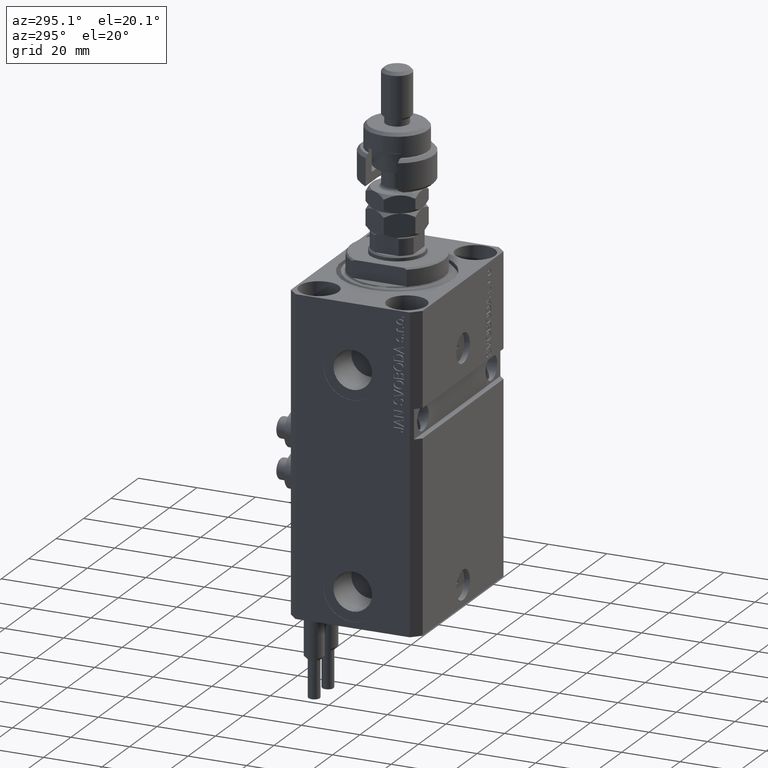
[diagram: clean part render]
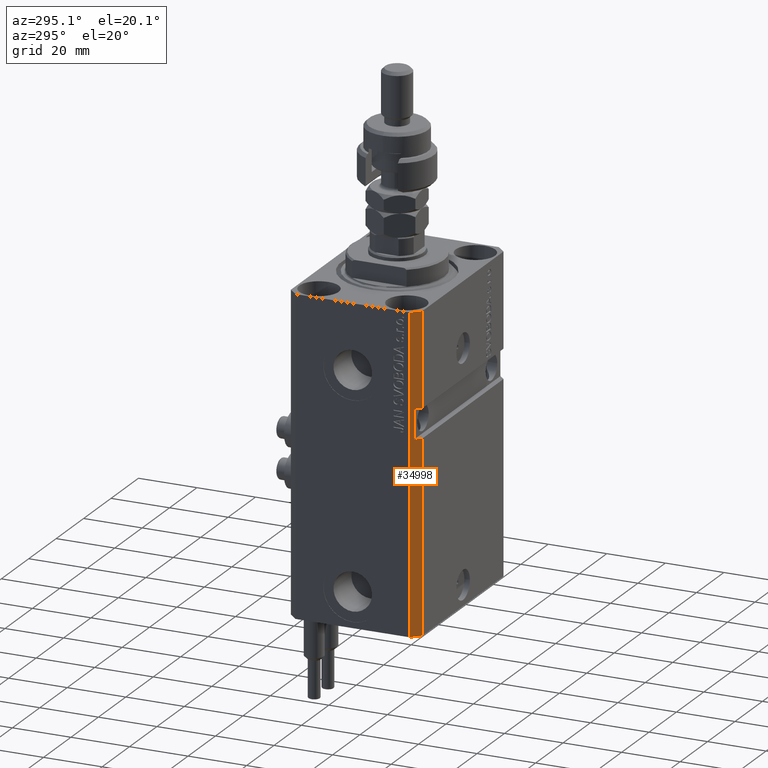
[diagram: same view with one face highlighted and labeled with its STEP entity id]
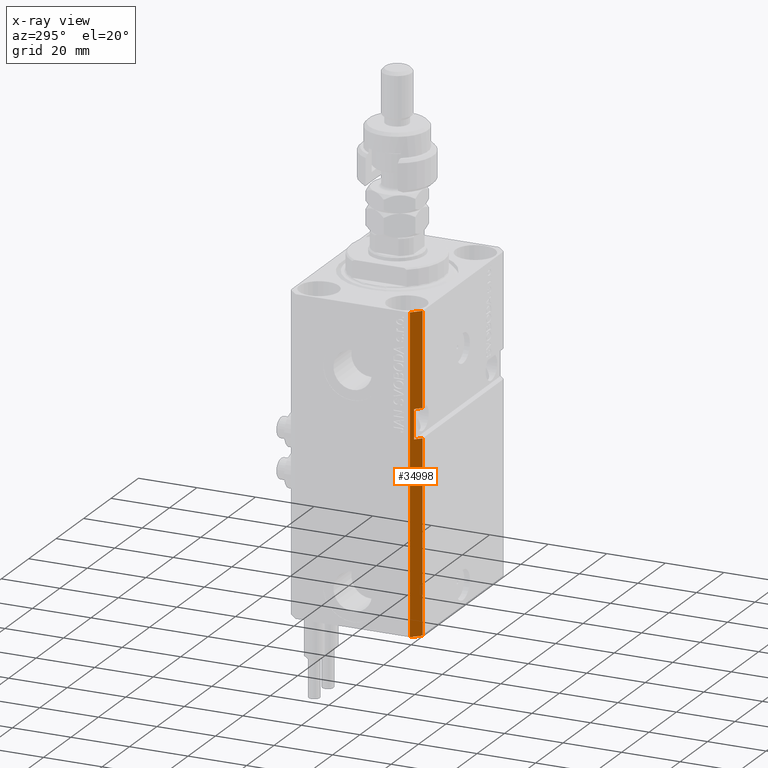
[diagram: x-ray of the same camera — body ghosted, the highlighted face saturated]
A machine part, auxiliary view. The second image highlights one B-rep face of the part: STEP entity #34998.
The next image is the same camera in x-ray: the body ghosted, the highlighted face saturated — about 0% of this face is hidden behind the body in this view.
In plain terms, the highlighted planar face has unit normal (-0.7071, -0.7071, 0).
Its self-contained STEP definition (entity closure, byte-faithful):
#646 = ORIENTED_EDGE ( 'NONE', *, *, #28214, .F. ) ;
#942 = VERTEX_POINT ( 'NONE', #43138 ) ;
#1677 = VERTEX_POINT ( 'NONE', #50659 ) ;
#1753 = ORIENTED_EDGE ( 'NONE', *, *, #12123, .T. ) ;
#1775 = FACE_OUTER_BOUND ( 'NONE', #27410, .T. ) ;
#4134 = ORIENTED_EDGE ( 'NONE', *, *, #31097, .T. ) ;
#7059 = ORIENTED_EDGE ( 'NONE', *, *, #28566, .T. ) ;
#7946 = VERTEX_POINT ( 'NONE', #47980 ) ;
#8659 = EDGE_CURVE ( 'NONE', #39610, #20502, #31889, .T. ) ;
#8815 = CARTESIAN_POINT ( 'NONE',  ( -32.49999999999650413, -19.49999999999949907, -107.0000000000000000 ) ) ;
#10753 = DIRECTION ( 'NONE',  ( 0.000000000000000000, 0.000000000000000000, 1.000000000000000000 ) ) ;
#11627 = LINE ( 'NONE', #16262, #17333 ) ;
#12123 = EDGE_CURVE ( 'NONE', #7946, #1677, #24641, .T. ) ;
#12942 = CARTESIAN_POINT ( 'NONE',  ( -29.49999999999650058, -22.49999999999949907, -32.00000000000000000 ) ) ;
#13181 = LINE ( 'NONE', #8815, #15758 ) ;
#13332 = CARTESIAN_POINT ( 'NONE',  ( -32.49999999999650413, -19.49999999999949907, -107.0000000000000000 ) ) ;
#14531 = VECTOR ( 'NONE', #48524, 1000.000000000000114 ) ;
#15349 = VECTOR ( 'NONE', #32387, 1000.000000000000114 ) ;
#15359 = VERTEX_POINT ( 'NONE', #44231 ) ;
#15758 = VECTOR ( 'NONE', #20890, 1000.000000000000000 ) ;
#16262 = CARTESIAN_POINT ( 'NONE',  ( -31.49999999999650413, -20.49999999999950262, -107.0000000000000000 ) ) ;
#17333 = VECTOR ( 'NONE', #38870, 1000.000000000000000 ) ;
#19741 = CARTESIAN_POINT ( 'NONE',  ( -29.49999999999650413, -22.49999999999949907, -41.99999999999999289 ) ) ;
#20114 = EDGE_CURVE ( 'NONE', #942, #20502, #11627, .T. ) ;
#20502 = VERTEX_POINT ( 'NONE', #20575 ) ;
#20575 = CARTESIAN_POINT ( 'NONE',  ( -31.49999999999650413, -20.49999999999950262, -32.00000000000000000 ) ) ;
#20890 = DIRECTION ( 'NONE',  ( 0.000000000000000000, 0.000000000000000000, 1.000000000000000000 ) ) ;
#21200 = CARTESIAN_POINT ( 'NONE',  ( -32.49999999999650413, -19.49999999999949907, 0.000000000000000000 ) ) ;
#21770 = ORIENTED_EDGE ( 'NONE', *, *, #43462, .F. ) ;
#23979 = VECTOR ( 'NONE', #10753, 1000.000000000000000 ) ;
#24136 = DIRECTION ( 'NONE',  ( 0.7071067811865474617, -0.7071067811865474617, 0.000000000000000000 ) ) ;
#24342 = ORIENTED_EDGE ( 'NONE', *, *, #20114, .T. ) ;
#24641 = LINE ( 'NONE', #28508, #39310 ) ;
#25162 = LINE ( 'NONE', #33874, #14531 ) ;
#26499 = CARTESIAN_POINT ( 'NONE',  ( -29.49999999999650413, -22.49999999999949907, -107.0000000000000000 ) ) ;
#26705 = ORIENTED_EDGE ( 'NONE', *, *, #48017, .F. ) ;
#27410 = EDGE_LOOP ( 'NONE', ( #21770, #24342, #44419, #7059, #26705, #646, #1753, #4134 ) ) ;
#28053 = VERTEX_POINT ( 'NONE', #19741 ) ;
#28214 = EDGE_CURVE ( 'NONE', #7946, #34663, #13181, .T. ) ;
#28508 = CARTESIAN_POINT ( 'NONE',  ( -32.49999999999650413, -19.49999999999949907, -107.0000000000000000 ) ) ;
#28566 = EDGE_CURVE ( 'NONE', #39610, #15359, #41119, .T. ) ;
#28924 = LINE ( 'NONE', #21200, #30651 ) ;
#29269 = DIRECTION ( 'NONE',  ( 0.7071067811865474617, -0.7071067811865474617, 0.000000000000000000 ) ) ;
#30651 = VECTOR ( 'NONE', #47922, 1000.000000000000114 ) ;
#31097 = EDGE_CURVE ( 'NONE', #1677, #28053, #42411, .T. ) ;
#31889 = LINE ( 'NONE', #36233, #15349 ) ;
#32387 = DIRECTION ( 'NONE',  ( -0.7071067811865474617, 0.7071067811865474617, 7.548521435980497974E-17 ) ) ;
#32421 = AXIS2_PLACEMENT_3D ( 'NONE', #13332, #48020, #24136 ) ;
#32878 = PLANE ( 'NONE',  #32421 ) ;
#33874 = CARTESIAN_POINT ( 'NONE',  ( -32.49999999999651124, -19.49999999999949551, -41.99999999999999289 ) ) ;
#33918 = VECTOR ( 'NONE', #38564, 1000.000000000000000 ) ;
#34663 = VERTEX_POINT ( 'NONE', #47153 ) ;
#34998 = ADVANCED_FACE ( 'NONE', ( #1775 ), #32878, .T. ) ;
#36233 = CARTESIAN_POINT ( 'NONE',  ( -32.49999999999649702, -19.49999999999950262, -32.00000000000001421 ) ) ;
#38564 = DIRECTION ( 'NONE',  ( 0.000000000000000000, 0.000000000000000000, 1.000000000000000000 ) ) ;
#38870 = DIRECTION ( 'NONE',  ( 0.000000000000000000, 0.000000000000000000, 1.000000000000000000 ) ) ;
#39310 = VECTOR ( 'NONE', #29269, 1000.000000000000114 ) ;
#39610 = VERTEX_POINT ( 'NONE', #12942 ) ;
#41119 = LINE ( 'NONE', #49564, #23979 ) ;
#42411 = LINE ( 'NONE', #26499, #33918 ) ;
#43138 = CARTESIAN_POINT ( 'NONE',  ( -31.49999999999650413, -20.49999999999949907, -41.99999999999999289 ) ) ;
#43462 = EDGE_CURVE ( 'NONE', #942, #28053, #25162, .T. ) ;
#44231 = CARTESIAN_POINT ( 'NONE',  ( -29.49999999999650413, -22.49999999999949907, 0.000000000000000000 ) ) ;
#44419 = ORIENTED_EDGE ( 'NONE', *, *, #8659, .F. ) ;
#47153 = CARTESIAN_POINT ( 'NONE',  ( -32.49999999999650413, -19.49999999999949907, 0.000000000000000000 ) ) ;
#47922 = DIRECTION ( 'NONE',  ( 0.7071067811865474617, -0.7071067811865474617, 0.000000000000000000 ) ) ;
#47980 = CARTESIAN_POINT ( 'NONE',  ( -32.49999999999650413, -19.49999999999949907, -107.0000000000000000 ) ) ;
#48017 = EDGE_CURVE ( 'NONE', #34663, #15359, #28924, .T. ) ;
#48020 = DIRECTION ( 'NONE',  ( -0.7071067811865475727, -0.7071067811865475727, 0.000000000000000000 ) ) ;
#48524 = DIRECTION ( 'NONE',  ( 0.7071067811865474617, -0.7071067811865474617, 7.548521435980497974E-17 ) ) ;
#49564 = CARTESIAN_POINT ( 'NONE',  ( -29.49999999999650413, -22.49999999999949907, -107.0000000000000000 ) ) ;
#50659 = CARTESIAN_POINT ( 'NONE',  ( -29.49999999999650413, -22.49999999999949907, -107.0000000000000000 ) ) ;